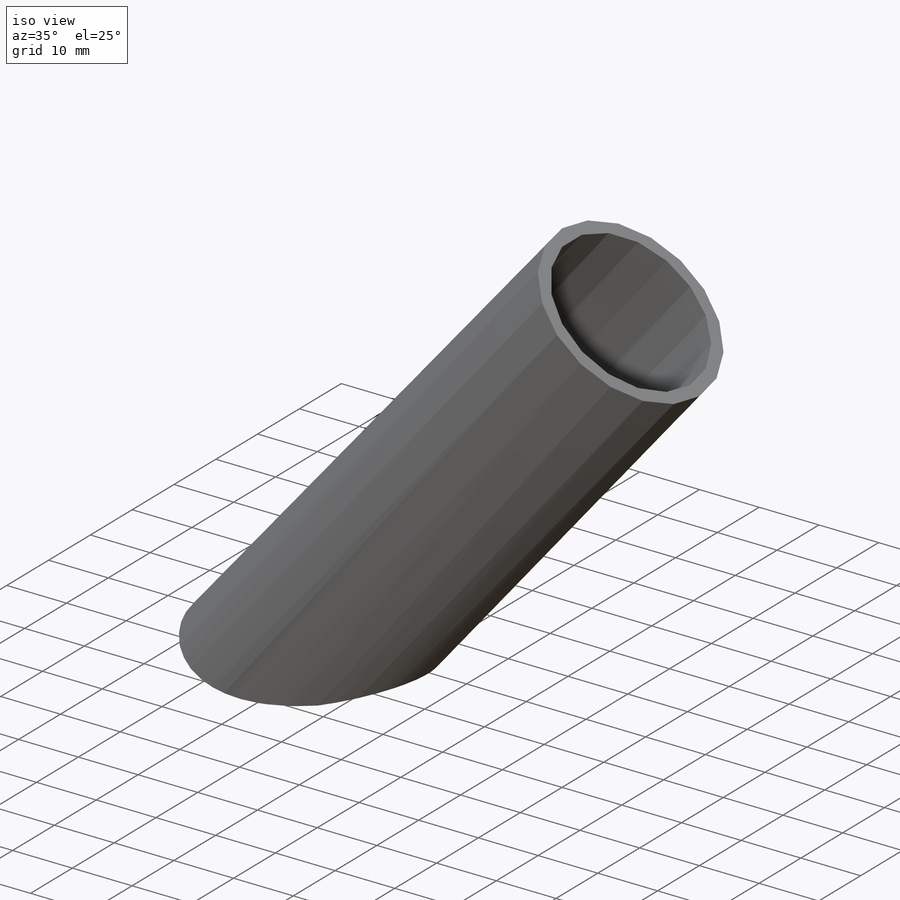
[diagram: iso view]
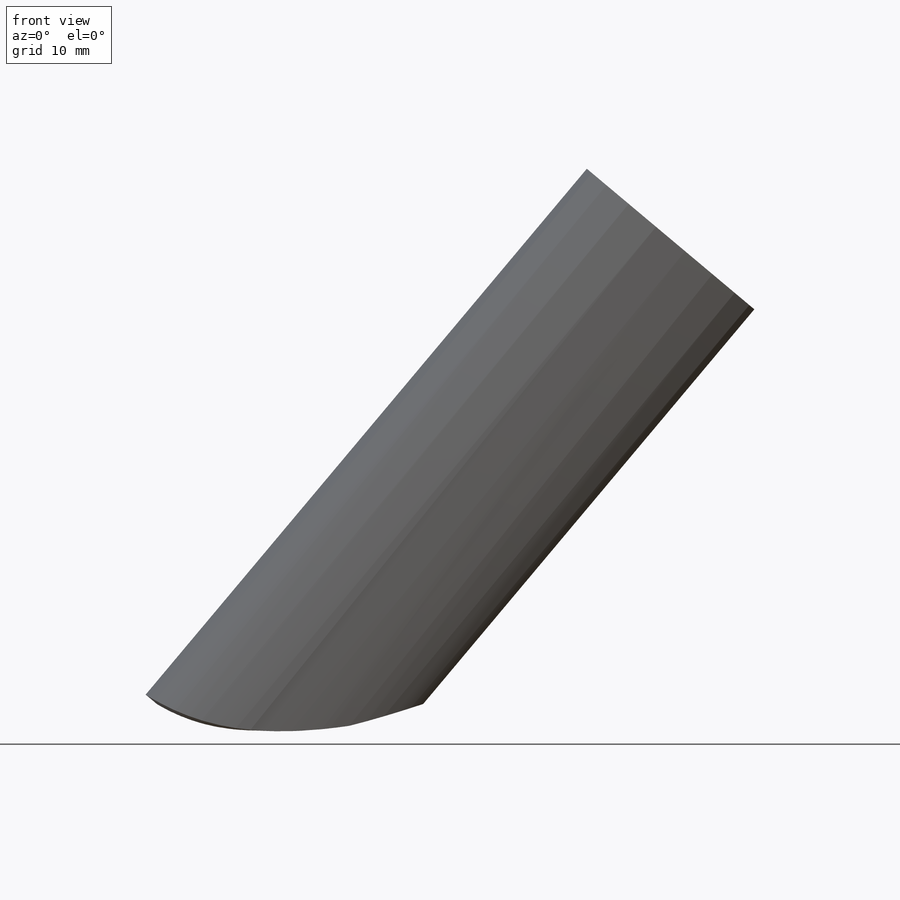
[diagram: front view]
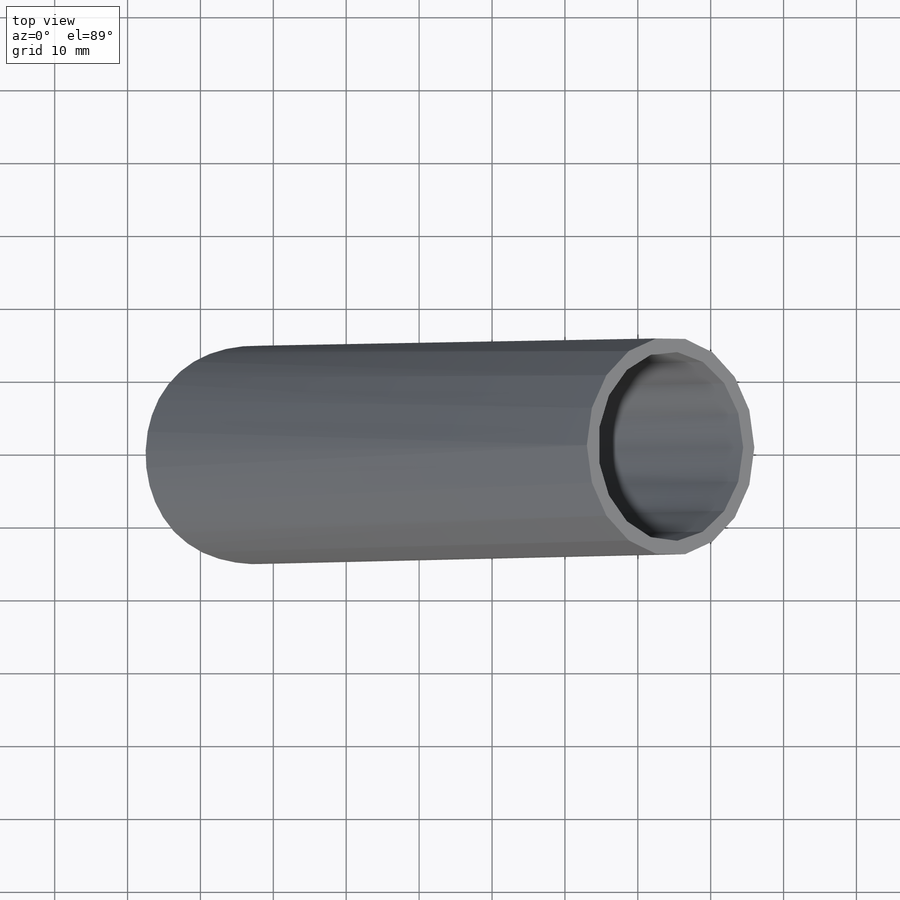
[diagram: top view]
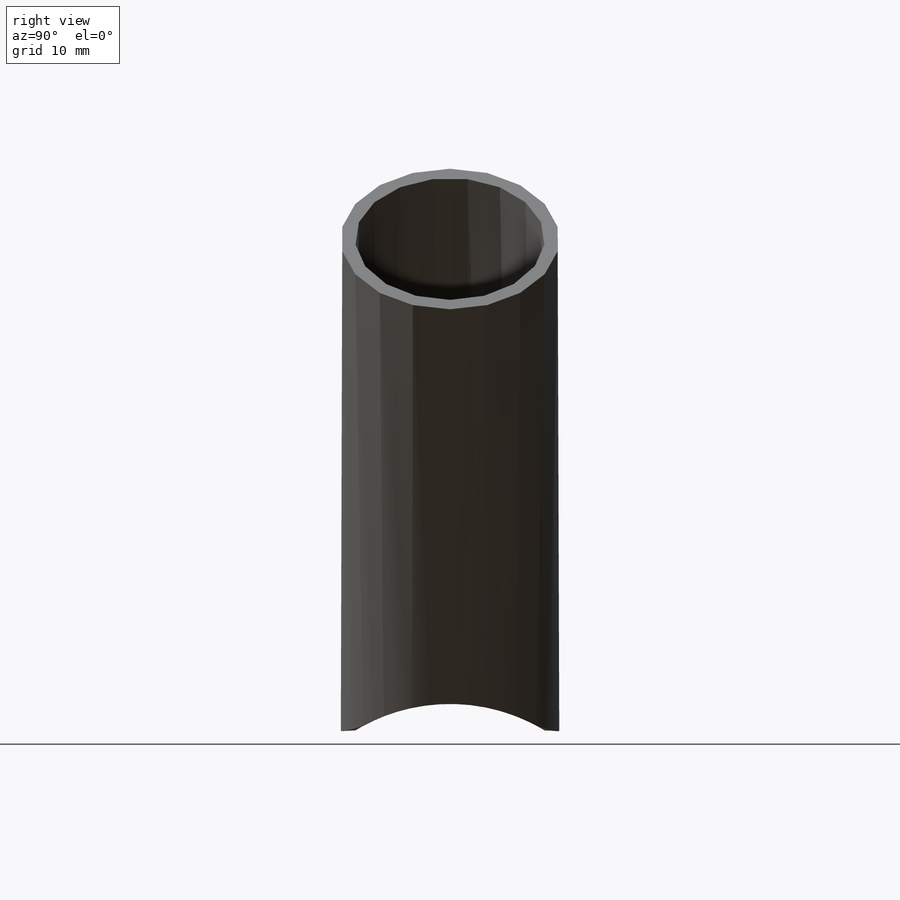
[diagram: right view]
SOLIDWORKS PART (.sldprt)
format: sldprt  version: not decoded by parser v0  size: 260,096 bytes
history: native  units: mm
features: plane x3, sketch x3, revolve x2, material x1, extrude x1, boolean_combine x1, surface_op x1 (+10 scaffold rows collapsed)
feature tree (22):
  scaffold x10  (default folders/planes/origin — collapsed)
  material  "Materiál <není určen>"
  plane  "XY"
  plane  "XZ"
  plane  "ZY"
  sketch  "Sketch1"  dims[D1=50.0mm]
  extrude  "Extrude1"  Depth=200mm
  sketch  "Sketch2"  dims[c1.D1=2.0mm c1.D2=30.0mm c1.D3=177.98mm c2.D3=40.0deg]
  revolve  "Revolve1"  Angle=360deg
  boolean_combine  "Combine1"
  surface_op  "Surface-Trim2"
  revolve  "Revolve2"  [1 undecoded]
  sketch  "Sketch"  dims[D1=360.0deg]
decode coverage: 5 of 8 modeling features carry decoded parameters
note: 1 parameter value undecoded
note: suppression state not decoded; provenance and decode notes live in map.json
